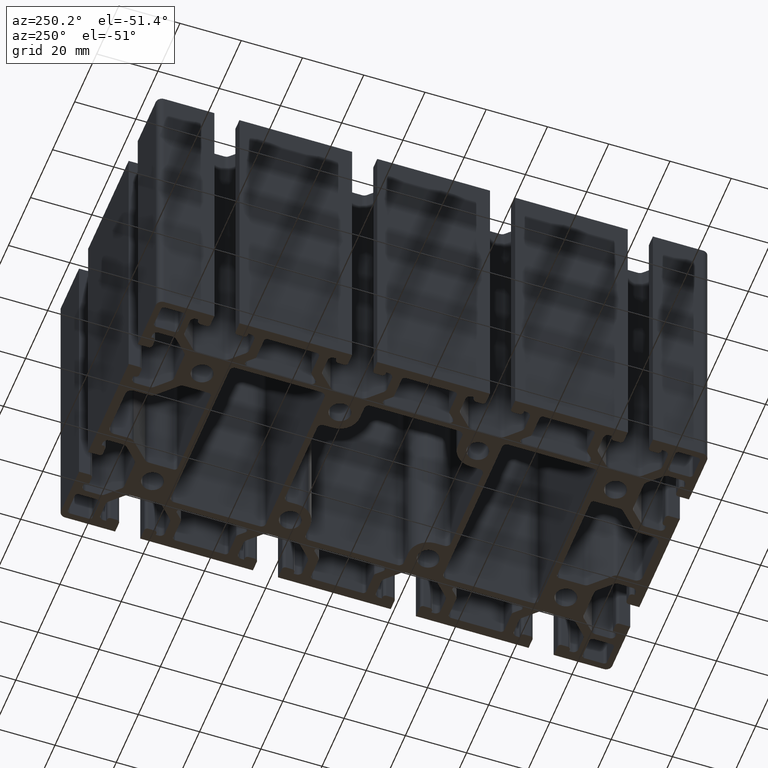
[diagram: clean part render]
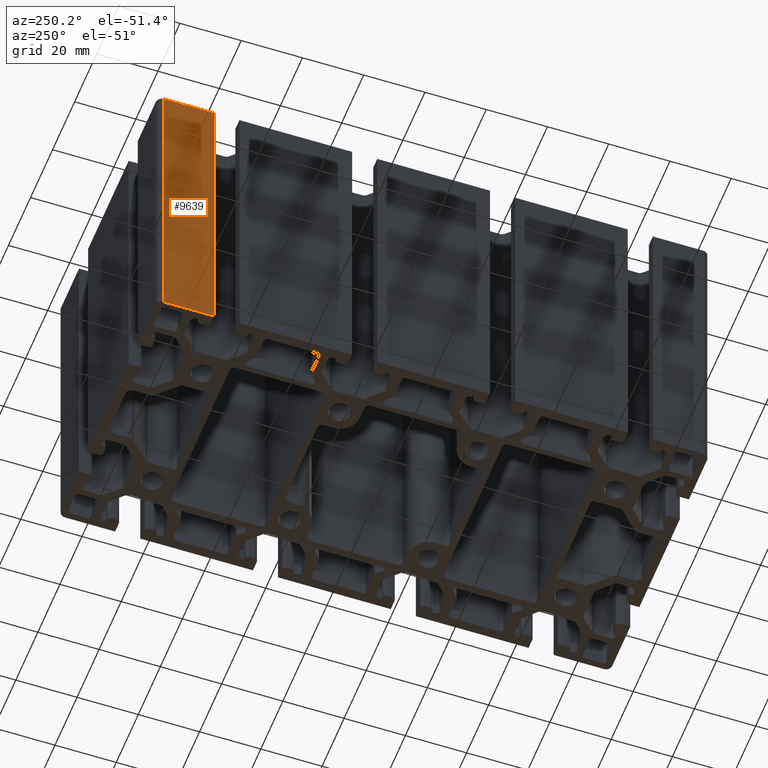
[diagram: same view with one face highlighted and labeled with its STEP entity id]
A machine part, auxiliary view. The second image highlights one B-rep face of the part: STEP entity #9639.
In plain terms, the highlighted planar face has unit normal (-1, 0, 0).
Its self-contained STEP definition (entity closure, byte-faithful):
#276=PLANE('',#10489);
#721=FACE_OUTER_BOUND('',#1211,.T.);
#1211=EDGE_LOOP('',(#7709,#7710,#7711,#7712));
#2150=LINE('',#15843,#3142);
#2151=LINE('',#15846,#3143);
#2152=LINE('',#15848,#3144);
#2153=LINE('',#15849,#3145);
#3142=VECTOR('',#12970,100.);
#3143=VECTOR('',#12973,16.4);
#3144=VECTOR('',#12974,16.4);
#3145=VECTOR('',#12975,100.);
#4563=VERTEX_POINT('',#15839);
#4564=VERTEX_POINT('',#15841);
#4565=VERTEX_POINT('',#15845);
#4566=VERTEX_POINT('',#15847);
#5900=EDGE_CURVE('',#4563,#4564,#2150,.T.);
#5901=EDGE_CURVE('',#4565,#4563,#2151,.T.);
#5902=EDGE_CURVE('',#4566,#4564,#2152,.T.);
#5903=EDGE_CURVE('',#4565,#4566,#2153,.T.);
#7709=ORIENTED_EDGE('',*,*,#5901,.T.);
#7710=ORIENTED_EDGE('',*,*,#5900,.T.);
#7711=ORIENTED_EDGE('',*,*,#5902,.F.);
#7712=ORIENTED_EDGE('',*,*,#5903,.F.);
#9639=ADVANCED_FACE('',(#721),#276,.T.);
#10489=AXIS2_PLACEMENT_3D('',#15844,#12971,#12972);
#12970=DIRECTION('',(0.,0.,-1.));
#12971=DIRECTION('center_axis',(-1.,0.,0.));
#12972=DIRECTION('ref_axis',(0.,1.,0.));
#12973=DIRECTION('',(0.,1.,0.));
#12974=DIRECTION('',(0.,1.,0.));
#12975=DIRECTION('',(0.,0.,-1.));
#15839=CARTESIAN_POINT('',(-12.7499999999999,86.5593806572022,0.));
#15841=CARTESIAN_POINT('',(-12.7499999999999,86.5593806572022,-100.));
#15843=CARTESIAN_POINT('',(-12.7499999999999,86.5593806572022,0.));
#15844=CARTESIAN_POINT('Origin',(-12.7499999999999,70.1593806572022,0.));
#15845=CARTESIAN_POINT('',(-12.7499999999999,70.1593806572022,0.));
#15846=CARTESIAN_POINT('',(-12.7499999999999,70.1593806572022,0.));
#15847=CARTESIAN_POINT('',(-12.7499999999999,70.1593806572022,-100.));
#15848=CARTESIAN_POINT('',(-12.7499999999999,70.1593806572022,-100.));
#15849=CARTESIAN_POINT('',(-12.7499999999999,70.1593806572022,0.));